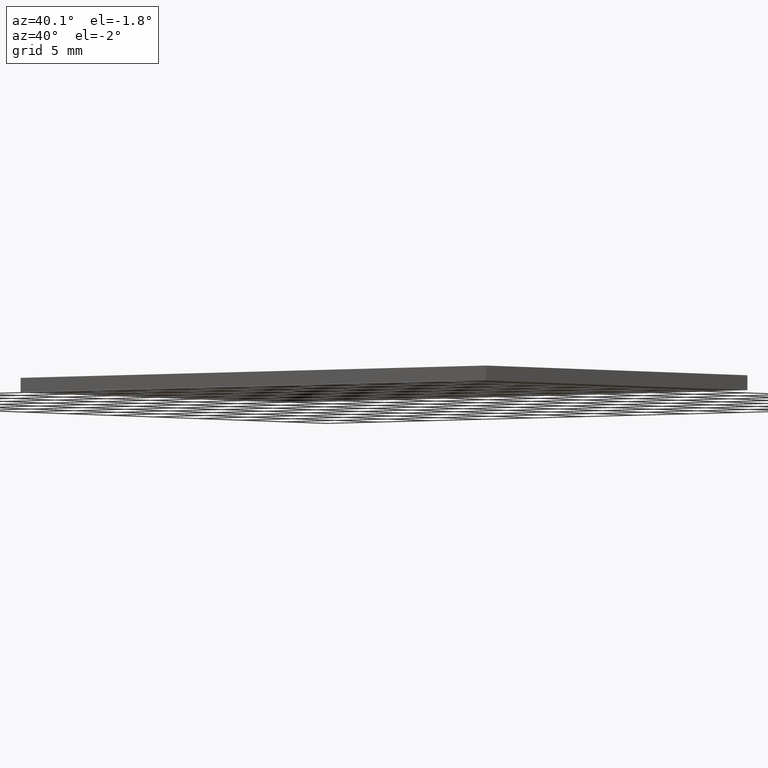
[diagram: clean part render]
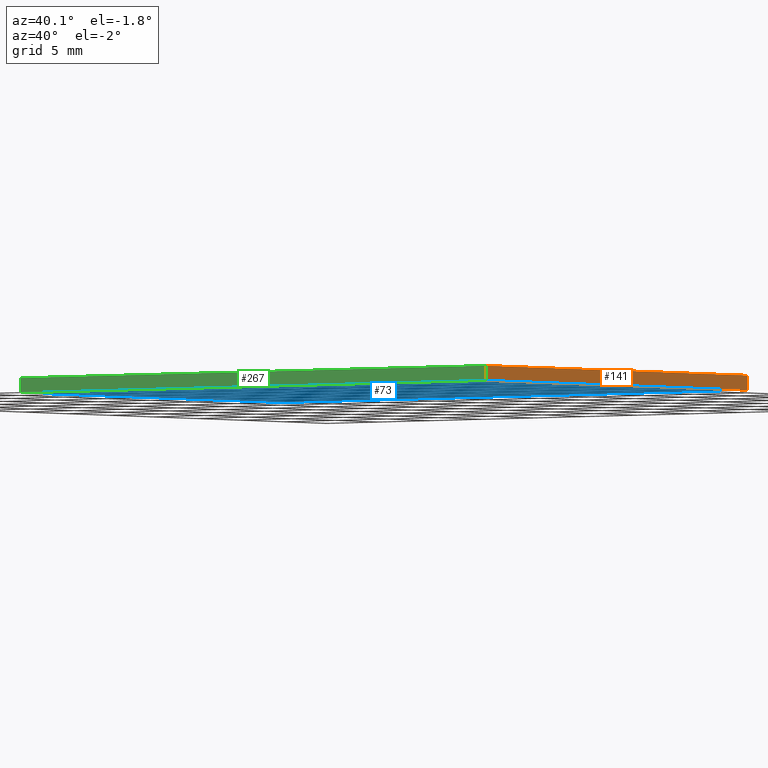
[diagram: same view with three faces highlighted in distinct colors, each labeled with its STEP entity id]
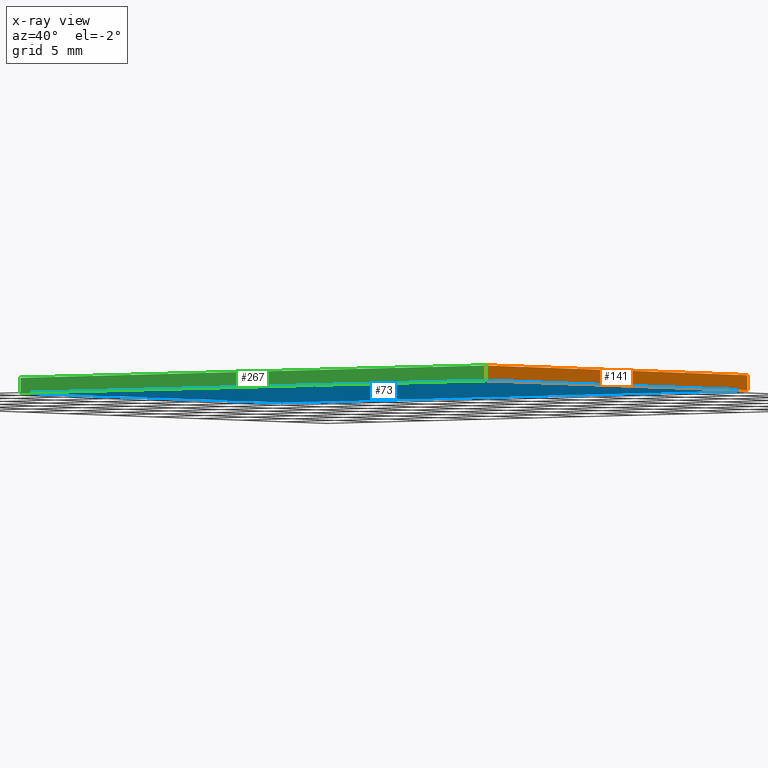
[diagram: x-ray of the same camera — body ghosted, the three highlighted faces saturated]
A machine part, auxiliary view with three faces highlighted in distinct colors.
The next image is the same camera in x-ray (body ghosted, the three faces saturated) — at least one of them is partly hidden behind the body in this view.
Their STEP definitions:

[orange] entity #141 — the highlighted planar face has unit normal (-1, 0, 0).
#13 = LINE ( 'NONE', #202, #164 ) ;
#19 = CARTESIAN_POINT ( 'NONE',  ( 22.50000000000000000, -15.00000000000000000, 1.100000000000000100 ) ) ;
#40 = AXIS2_PLACEMENT_3D ( 'NONE', #54, #150, #107 ) ;
#50 = ORIENTED_EDGE ( 'NONE', *, *, #208, .T. ) ;
#54 = CARTESIAN_POINT ( 'NONE',  ( 22.50000000000000000, -15.00000000000000000, 1.100000000000000100 ) ) ;
#66 = VECTOR ( 'NONE', #203, 1000.000000000000000 ) ;
#78 = ORIENTED_EDGE ( 'NONE', *, *, #144, .T. ) ;
#88 = VERTEX_POINT ( 'NONE', #271 ) ;
#92 = LINE ( 'NONE', #158, #266 ) ;
#107 = DIRECTION ( 'NONE',  ( 0.0000000000000000000, 0.0000000000000000000, 1.000000000000000000 ) ) ;
#109 = LINE ( 'NONE', #130, #66 ) ;
#129 = VERTEX_POINT ( 'NONE', #176 ) ;
#130 = CARTESIAN_POINT ( 'NONE',  ( 22.50000000000000000, -15.00000000000000000, 1.100000000000000100 ) ) ;
#141 = ADVANCED_FACE ( 'NONE', ( #180 ), #147, .F. ) ;
#144 = EDGE_CURVE ( 'NONE', #303, #88, #92, .T. ) ;
#147 = PLANE ( 'NONE',  #40 ) ;
#149 = EDGE_LOOP ( 'NONE', ( #78, #309, #194, #50 ) ) ;
#150 = DIRECTION ( 'NONE',  ( -1.000000000000000000, 0.0000000000000000000, 0.0000000000000000000 ) ) ;
#155 = DIRECTION ( 'NONE',  ( 0.0000000000000000000, 1.000000000000000000, 0.0000000000000000000 ) ) ;
#158 = CARTESIAN_POINT ( 'NONE',  ( 22.50000000000000000, -15.00000000000000000, 0.0000000000000000000 ) ) ;
#164 = VECTOR ( 'NONE', #201, 1000.000000000000000 ) ;
#168 = VERTEX_POINT ( 'NONE', #199 ) ;
#176 = CARTESIAN_POINT ( 'NONE',  ( 22.50000000000000000, -15.00000000000000000, 1.100000000000000100 ) ) ;
#180 = FACE_OUTER_BOUND ( 'NONE', #149, .T. ) ;
#192 = EDGE_CURVE ( 'NONE', #168, #88, #13, .T. ) ;
#194 = ORIENTED_EDGE ( 'NONE', *, *, #215, .F. ) ;
#199 = CARTESIAN_POINT ( 'NONE',  ( 22.50000000000000000, 15.00000000000000000, 1.100000000000000100 ) ) ;
#201 = DIRECTION ( 'NONE',  ( -0.0000000000000000000, -0.0000000000000000000, -1.000000000000000000 ) ) ;
#202 = CARTESIAN_POINT ( 'NONE',  ( 22.50000000000000000, 15.00000000000000000, 1.100000000000000100 ) ) ;
#203 = DIRECTION ( 'NONE',  ( -0.0000000000000000000, -0.0000000000000000000, -1.000000000000000000 ) ) ;
#208 = EDGE_CURVE ( 'NONE', #129, #303, #109, .T. ) ;
#215 = EDGE_CURVE ( 'NONE', #129, #168, #279, .T. ) ;
#238 = VECTOR ( 'NONE', #155, 1000.000000000000000 ) ;
#253 = CARTESIAN_POINT ( 'NONE',  ( 22.50000000000000000, -15.00000000000000000, 0.0000000000000000000 ) ) ;
#266 = VECTOR ( 'NONE', #282, 1000.000000000000000 ) ;
#271 = CARTESIAN_POINT ( 'NONE',  ( 22.50000000000000000, 15.00000000000000000, 0.0000000000000000000 ) ) ;
#279 = LINE ( 'NONE', #19, #238 ) ;
#282 = DIRECTION ( 'NONE',  ( 0.0000000000000000000, 1.000000000000000000, 0.0000000000000000000 ) ) ;
#303 = VERTEX_POINT ( 'NONE', #253 ) ;
#309 = ORIENTED_EDGE ( 'NONE', *, *, #192, .F. ) ;

[blue] entity #73 — the highlighted planar face has unit normal (0, 0, -1).
#10 = EDGE_CURVE ( 'NONE', #270, #159, #53, .T. ) ;
#12 = DIRECTION ( 'NONE',  ( 0.0000000000000000000, 0.0000000000000000000, -1.000000000000000000 ) ) ;
#14 = DIRECTION ( 'NONE',  ( -1.000000000000000000, -0.0000000000000000000, -0.0000000000000000000 ) ) ;
#15 = EDGE_CURVE ( 'NONE', #88, #270, #190, .T. ) ;
#16 = ORIENTED_EDGE ( 'NONE', *, *, #15, .F. ) ;
#29 = VECTOR ( 'NONE', #83, 1000.000000000000000 ) ;
#53 = LINE ( 'NONE', #278, #29 ) ;
#62 = ORIENTED_EDGE ( 'NONE', *, *, #97, .F. ) ;
#64 = AXIS2_PLACEMENT_3D ( 'NONE', #305, #12, #276 ) ;
#71 = FACE_OUTER_BOUND ( 'NONE', #74, .T. ) ;
#73 = ADVANCED_FACE ( 'NONE', ( #71 ), #86, .T. ) ;
#74 = EDGE_LOOP ( 'NONE', ( #217, #62, #239, #16 ) ) ;
#83 = DIRECTION ( 'NONE',  ( -0.0000000000000000000, -1.000000000000000000, -0.0000000000000000000 ) ) ;
#85 = CARTESIAN_POINT ( 'NONE',  ( -22.49999999999999600, 15.00000000000000000, 0.0000000000000000000 ) ) ;
#86 = PLANE ( 'NONE',  #64 ) ;
#88 = VERTEX_POINT ( 'NONE', #271 ) ;
#92 = LINE ( 'NONE', #158, #266 ) ;
#97 = EDGE_CURVE ( 'NONE', #159, #303, #125, .T. ) ;
#98 = VECTOR ( 'NONE', #14, 1000.000000000000000 ) ;
#125 = LINE ( 'NONE', #277, #133 ) ;
#133 = VECTOR ( 'NONE', #173, 1000.000000000000000 ) ;
#144 = EDGE_CURVE ( 'NONE', #303, #88, #92, .T. ) ;
#158 = CARTESIAN_POINT ( 'NONE',  ( 22.50000000000000000, -15.00000000000000000, 0.0000000000000000000 ) ) ;
#159 = VERTEX_POINT ( 'NONE', #307 ) ;
#173 = DIRECTION ( 'NONE',  ( 1.000000000000000000, 0.0000000000000000000, 0.0000000000000000000 ) ) ;
#190 = LINE ( 'NONE', #85, #98 ) ;
#217 = ORIENTED_EDGE ( 'NONE', *, *, #144, .F. ) ;
#231 = CARTESIAN_POINT ( 'NONE',  ( -22.49999999999999600, 15.00000000000000000, 0.0000000000000000000 ) ) ;
#239 = ORIENTED_EDGE ( 'NONE', *, *, #10, .F. ) ;
#253 = CARTESIAN_POINT ( 'NONE',  ( 22.50000000000000000, -15.00000000000000000, 0.0000000000000000000 ) ) ;
#266 = VECTOR ( 'NONE', #282, 1000.000000000000000 ) ;
#270 = VERTEX_POINT ( 'NONE', #231 ) ;
#271 = CARTESIAN_POINT ( 'NONE',  ( 22.50000000000000000, 15.00000000000000000, 0.0000000000000000000 ) ) ;
#276 = DIRECTION ( 'NONE',  ( -1.000000000000000000, 0.0000000000000000000, -0.0000000000000000000 ) ) ;
#277 = CARTESIAN_POINT ( 'NONE',  ( -22.49999999999999600, -15.00000000000000000, 0.0000000000000000000 ) ) ;
#278 = CARTESIAN_POINT ( 'NONE',  ( -22.49999999999999600, -15.00000000000000000, 0.0000000000000000000 ) ) ;
#282 = DIRECTION ( 'NONE',  ( 0.0000000000000000000, 1.000000000000000000, 0.0000000000000000000 ) ) ;
#303 = VERTEX_POINT ( 'NONE', #253 ) ;
#305 = CARTESIAN_POINT ( 'NONE',  ( 0.0000000000000000000, 0.0000000000000000000, 0.0000000000000000000 ) ) ;
#307 = CARTESIAN_POINT ( 'NONE',  ( -22.49999999999999600, -15.00000000000000000, 0.0000000000000000000 ) ) ;

[green] entity #267 — the highlighted planar face has unit normal (0, 1, 0).
#27 = VERTEX_POINT ( 'NONE', #106 ) ;
#57 = LINE ( 'NONE', #177, #295 ) ;
#58 = EDGE_CURVE ( 'NONE', #27, #159, #200, .T. ) ;
#66 = VECTOR ( 'NONE', #203, 1000.000000000000000 ) ;
#84 = VECTOR ( 'NONE', #306, 1000.000000000000000 ) ;
#93 = CARTESIAN_POINT ( 'NONE',  ( -22.49999999999999600, -15.00000000000000000, 1.100000000000000100 ) ) ;
#97 = EDGE_CURVE ( 'NONE', #159, #303, #125, .T. ) ;
#106 = CARTESIAN_POINT ( 'NONE',  ( -22.49999999999999600, -15.00000000000000000, 1.100000000000000100 ) ) ;
#109 = LINE ( 'NONE', #130, #66 ) ;
#123 = FACE_OUTER_BOUND ( 'NONE', #287, .T. ) ;
#125 = LINE ( 'NONE', #277, #133 ) ;
#129 = VERTEX_POINT ( 'NONE', #176 ) ;
#130 = CARTESIAN_POINT ( 'NONE',  ( 22.50000000000000000, -15.00000000000000000, 1.100000000000000100 ) ) ;
#133 = VECTOR ( 'NONE', #173, 1000.000000000000000 ) ;
#139 = ORIENTED_EDGE ( 'NONE', *, *, #58, .T. ) ;
#152 = CARTESIAN_POINT ( 'NONE',  ( -22.49999999999999600, -15.00000000000000000, 1.100000000000000100 ) ) ;
#159 = VERTEX_POINT ( 'NONE', #307 ) ;
#173 = DIRECTION ( 'NONE',  ( 1.000000000000000000, 0.0000000000000000000, 0.0000000000000000000 ) ) ;
#176 = CARTESIAN_POINT ( 'NONE',  ( 22.50000000000000000, -15.00000000000000000, 1.100000000000000100 ) ) ;
#177 = CARTESIAN_POINT ( 'NONE',  ( -22.49999999999999600, -15.00000000000000000, 1.100000000000000100 ) ) ;
#181 = PLANE ( 'NONE',  #236 ) ;
#200 = LINE ( 'NONE', #152, #84 ) ;
#203 = DIRECTION ( 'NONE',  ( -0.0000000000000000000, -0.0000000000000000000, -1.000000000000000000 ) ) ;
#206 = ORIENTED_EDGE ( 'NONE', *, *, #298, .F. ) ;
#207 = DIRECTION ( 'NONE',  ( 0.0000000000000000000, -0.0000000000000000000, 1.000000000000000000 ) ) ;
#208 = EDGE_CURVE ( 'NONE', #129, #303, #109, .T. ) ;
#212 = ORIENTED_EDGE ( 'NONE', *, *, #97, .T. ) ;
#219 = ORIENTED_EDGE ( 'NONE', *, *, #208, .F. ) ;
#226 = DIRECTION ( 'NONE',  ( 1.000000000000000000, 0.0000000000000000000, 0.0000000000000000000 ) ) ;
#229 = DIRECTION ( 'NONE',  ( 0.0000000000000000000, 1.000000000000000000, 0.0000000000000000000 ) ) ;
#236 = AXIS2_PLACEMENT_3D ( 'NONE', #93, #229, #207 ) ;
#253 = CARTESIAN_POINT ( 'NONE',  ( 22.50000000000000000, -15.00000000000000000, 0.0000000000000000000 ) ) ;
#267 = ADVANCED_FACE ( 'NONE', ( #123 ), #181, .F. ) ;
#277 = CARTESIAN_POINT ( 'NONE',  ( -22.49999999999999600, -15.00000000000000000, 0.0000000000000000000 ) ) ;
#287 = EDGE_LOOP ( 'NONE', ( #212, #219, #206, #139 ) ) ;
#295 = VECTOR ( 'NONE', #226, 1000.000000000000000 ) ;
#298 = EDGE_CURVE ( 'NONE', #27, #129, #57, .T. ) ;
#303 = VERTEX_POINT ( 'NONE', #253 ) ;
#306 = DIRECTION ( 'NONE',  ( -0.0000000000000000000, -0.0000000000000000000, -1.000000000000000000 ) ) ;
#307 = CARTESIAN_POINT ( 'NONE',  ( -22.49999999999999600, -15.00000000000000000, 0.0000000000000000000 ) ) ;